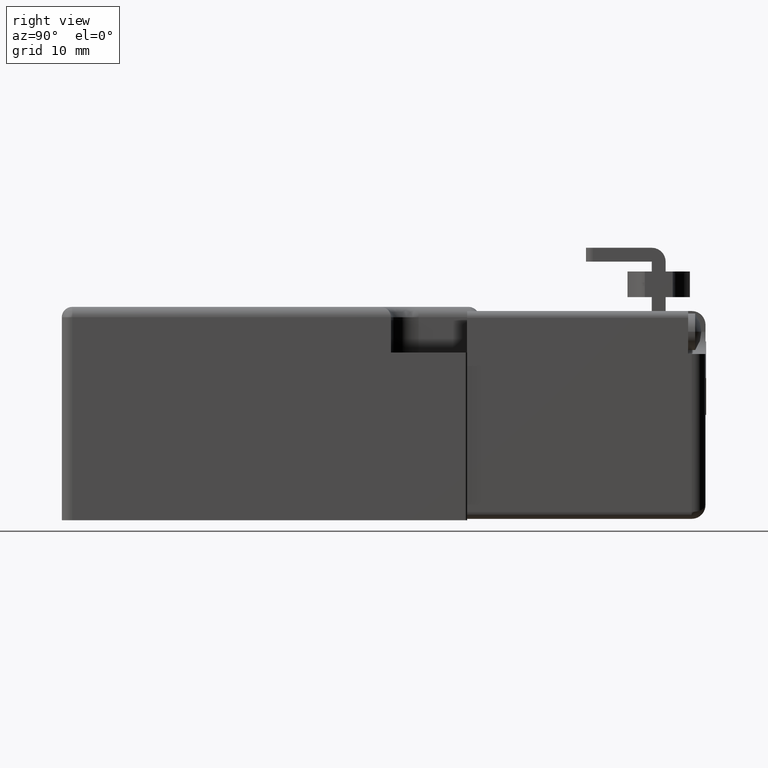
[diagram: clean part render]
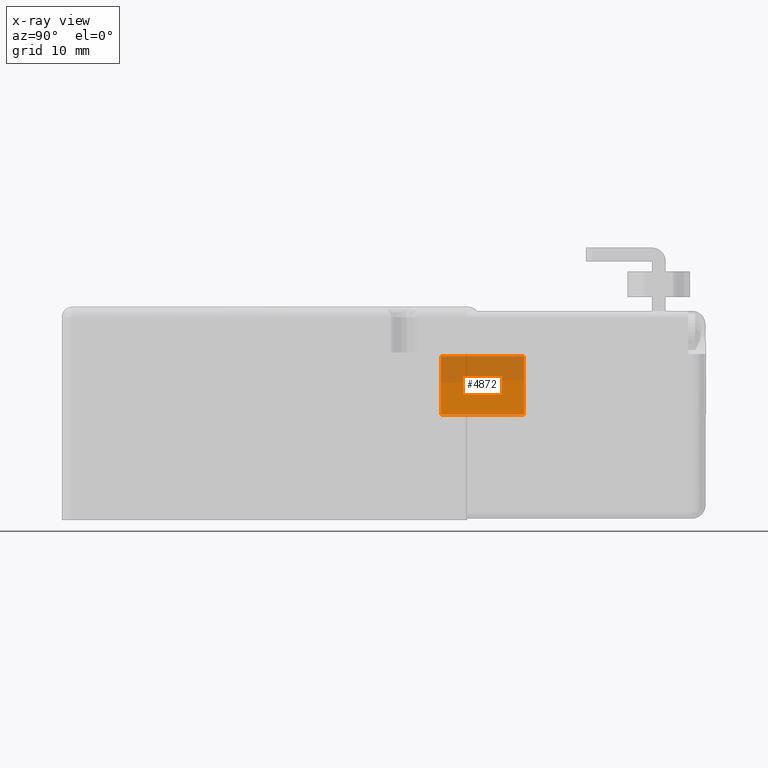
[diagram: x-ray — body ghosted, one internal face saturated and labeled with its STEP entity id]
A machine part, right view, then the same camera in x-ray: the body is ghosted and one INTERNAL B-rep face — a face not visible from any outside direction — is saturated and labeled: STEP entity #4872.
In plain terms, the highlighted planar face has unit normal (0.7071, 0, 0.7071).
Its self-contained STEP definition (entity closure, byte-faithful):
#4028=CARTESIAN_POINT('',(5.885281374238510,-24.199999999999996,14.999999999999980));
#4029=VERTEX_POINT('',#4028);
#4030=CARTESIAN_POINT('',(-2.600000000000056,-24.199999999999996,23.485281374238554));
#4031=VERTEX_POINT('',#4030);
#4032=CARTESIAN_POINT('',(5.885281374238513,-24.199999999999996,14.999999999999982));
#4033=DIRECTION('',(-0.707106781186547,0.0,0.707106781186548));
#4034=VECTOR('',#4033,12.0);
#4035=LINE('',#4032,#4034);
#4036=EDGE_CURVE('',#4029,#4031,#4035,.T.);
#4094=CARTESIAN_POINT('',(-2.600000000000056,-36.199999999999996,23.485281374238554));
#4095=VERTEX_POINT('',#4094);
#4102=CARTESIAN_POINT('',(5.885281374238510,-36.199999999999996,14.999999999999980));
#4103=VERTEX_POINT('',#4102);
#4104=CARTESIAN_POINT('',(5.885281374238513,-36.199999999999996,14.999999999999982));
#4105=DIRECTION('',(-0.707106781186547,0.0,0.707106781186548));
#4106=VECTOR('',#4105,12.0);
#4107=LINE('',#4104,#4106);
#4108=EDGE_CURVE('',#4103,#4095,#4107,.T.);
#4133=CARTESIAN_POINT('',(-2.600000000000056,-36.199999999999996,23.485281374238554));
#4134=DIRECTION('',(0.0,1.0,0.0));
#4135=VECTOR('',#4134,12.0);
#4136=LINE('',#4133,#4135);
#4137=EDGE_CURVE('',#4095,#4031,#4136,.T.);
#4856=CARTESIAN_POINT('',(6.309545442950441,-23.599999999999998,14.575735931288053));
#4857=DIRECTION('',(0.707106781186548,0.0,0.707106781186547));
#4858=DIRECTION('',(-0.707106781186547,0.0,0.707106781186548));
#4859=AXIS2_PLACEMENT_3D('',#4856,#4857,#4858);
#4860=PLANE('',#4859);
#4861=ORIENTED_EDGE('',*,*,#4036,.F.);
#4862=CARTESIAN_POINT('',(5.885281374238510,-36.199999999999996,14.999999999999980));
#4863=DIRECTION('',(0.0,1.0,0.0));
#4864=VECTOR('',#4863,12.0);
#4865=LINE('',#4862,#4864);
#4866=EDGE_CURVE('',#4103,#4029,#4865,.T.);
#4867=ORIENTED_EDGE('',*,*,#4866,.F.);
#4868=ORIENTED_EDGE('',*,*,#4108,.T.);
#4869=ORIENTED_EDGE('',*,*,#4137,.T.);
#4870=EDGE_LOOP('',(#4861,#4867,#4868,#4869));
#4871=FACE_OUTER_BOUND('',#4870,.T.);
#4872=ADVANCED_FACE('',(#4871),#4860,.F.);